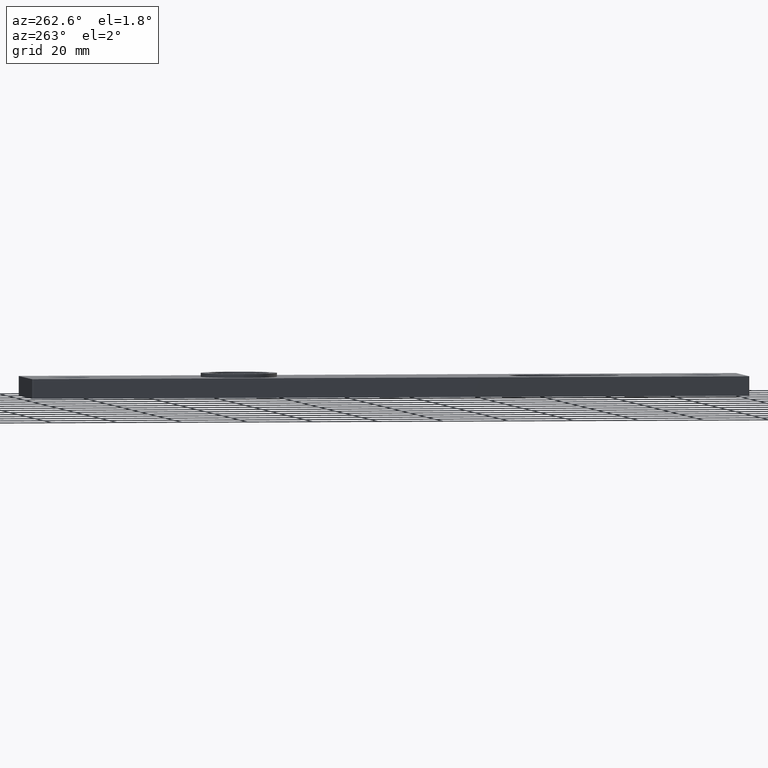
[diagram: clean part render]
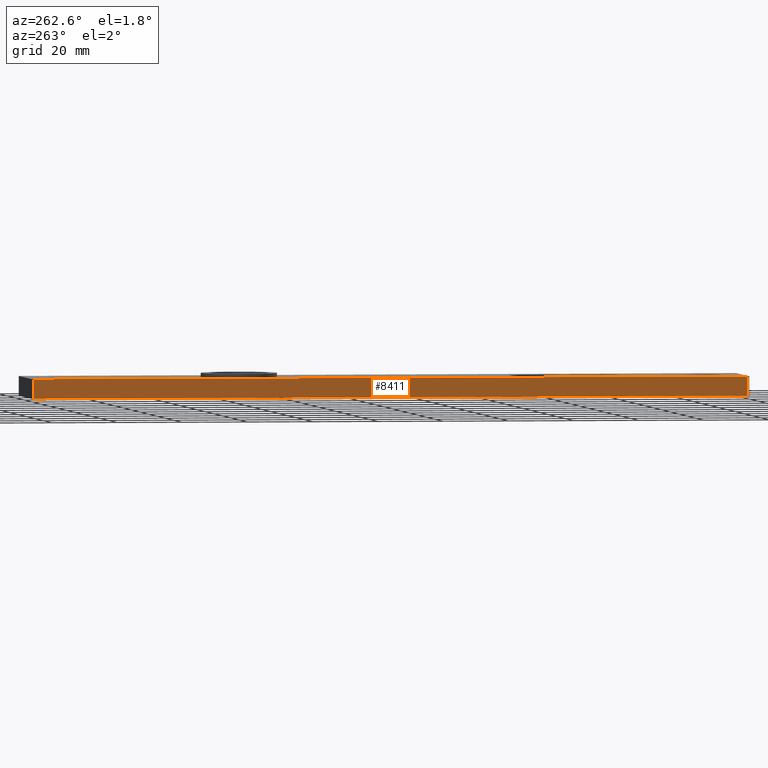
[diagram: same view with one face highlighted and labeled with its STEP entity id]
A machine part, auxiliary view. The second image highlights one B-rep face of the part: STEP entity #8411.
In plain terms, the highlighted planar face has unit normal (1, 0, 0).
Its self-contained STEP definition (entity closure, byte-faithful):
#606 = DIRECTION ( 'NONE',  ( 1.000000000000000000, 1.261617073437678000E-016, -0.0000000000000000000 ) ) ;
#1156 = CARTESIAN_POINT ( 'NONE',  ( -15.99999999999997900, -109.5000000000000100, 0.0000000000000000000 ) ) ;
#1233 = VERTEX_POINT ( 'NONE', #3474 ) ;
#1279 = VERTEX_POINT ( 'NONE', #7091 ) ;
#1427 = EDGE_CURVE ( 'NONE', #1233, #4442, #10012, .T. ) ;
#1509 = DIRECTION ( 'NONE',  ( 0.0000000000000000000, 0.0000000000000000000, -1.000000000000000000 ) ) ;
#1573 = EDGE_LOOP ( 'NONE', ( #3009, #6369, #2062, #10966 ) ) ;
#1748 = LINE ( 'NONE', #3309, #10336 ) ;
#2062 = ORIENTED_EDGE ( 'NONE', *, *, #1427, .F. ) ;
#2220 = PLANE ( 'NONE',  #4564 ) ;
#2892 = FACE_OUTER_BOUND ( 'NONE', #1573, .T. ) ;
#3009 = ORIENTED_EDGE ( 'NONE', *, *, #4613, .T. ) ;
#3111 = CARTESIAN_POINT ( 'NONE',  ( -15.99999999999997900, -109.5000000000000100, 6.000000000000000000 ) ) ;
#3309 = CARTESIAN_POINT ( 'NONE',  ( -16.00000000000000700, 109.4999999999999900, 6.000000000000000000 ) ) ;
#3394 = LINE ( 'NONE', #6960, #5748 ) ;
#3474 = CARTESIAN_POINT ( 'NONE',  ( -16.00000000000000700, 109.4999999999999900, 6.000000000000000000 ) ) ;
#4089 = EDGE_CURVE ( 'NONE', #1233, #1279, #1748, .T. ) ;
#4442 = VERTEX_POINT ( 'NONE', #3111 ) ;
#4564 = AXIS2_PLACEMENT_3D ( 'NONE', #5121, #606, #7844 ) ;
#4613 = EDGE_CURVE ( 'NONE', #1279, #5159, #8016, .T. ) ;
#5089 = VECTOR ( 'NONE', #10985, 1000.000000000000000 ) ;
#5121 = CARTESIAN_POINT ( 'NONE',  ( -16.00000000000000700, 109.9999999999999900, 6.000000000000000000 ) ) ;
#5159 = VERTEX_POINT ( 'NONE', #1156 ) ;
#5193 = EDGE_CURVE ( 'NONE', #5159, #4442, #3394, .T. ) ;
#5748 = VECTOR ( 'NONE', #6152, 1000.000000000000000 ) ;
#6152 = DIRECTION ( 'NONE',  ( -0.0000000000000000000, -0.0000000000000000000, 1.000000000000000000 ) ) ;
#6369 = ORIENTED_EDGE ( 'NONE', *, *, #5193, .T. ) ;
#6960 = CARTESIAN_POINT ( 'NONE',  ( -15.99999999999997900, -109.5000000000000100, 6.000000000000000000 ) ) ;
#7091 = CARTESIAN_POINT ( 'NONE',  ( -16.00000000000000700, 109.4999999999999900, 0.0000000000000000000 ) ) ;
#7215 = CARTESIAN_POINT ( 'NONE',  ( -16.00000000000000700, 109.9999999999999900, 0.0000000000000000000 ) ) ;
#7463 = CARTESIAN_POINT ( 'NONE',  ( -16.00000000000000700, 109.9999999999999900, 6.000000000000000000 ) ) ;
#7844 = DIRECTION ( 'NONE',  ( -1.261617073437678000E-016, 1.000000000000000000, 0.0000000000000000000 ) ) ;
#8016 = LINE ( 'NONE', #7215, #11007 ) ;
#8411 = ADVANCED_FACE ( 'NONE', ( #2892 ), #2220, .F. ) ;
#10012 = LINE ( 'NONE', #7463, #5089 ) ;
#10336 = VECTOR ( 'NONE', #1509, 1000.000000000000000 ) ;
#10837 = DIRECTION ( 'NONE',  ( 1.261617073437678000E-016, -1.000000000000000000, 0.0000000000000000000 ) ) ;
#10966 = ORIENTED_EDGE ( 'NONE', *, *, #4089, .T. ) ;
#10985 = DIRECTION ( 'NONE',  ( 1.261617073437678000E-016, -1.000000000000000000, 0.0000000000000000000 ) ) ;
#11007 = VECTOR ( 'NONE', #10837, 1000.000000000000000 ) ;